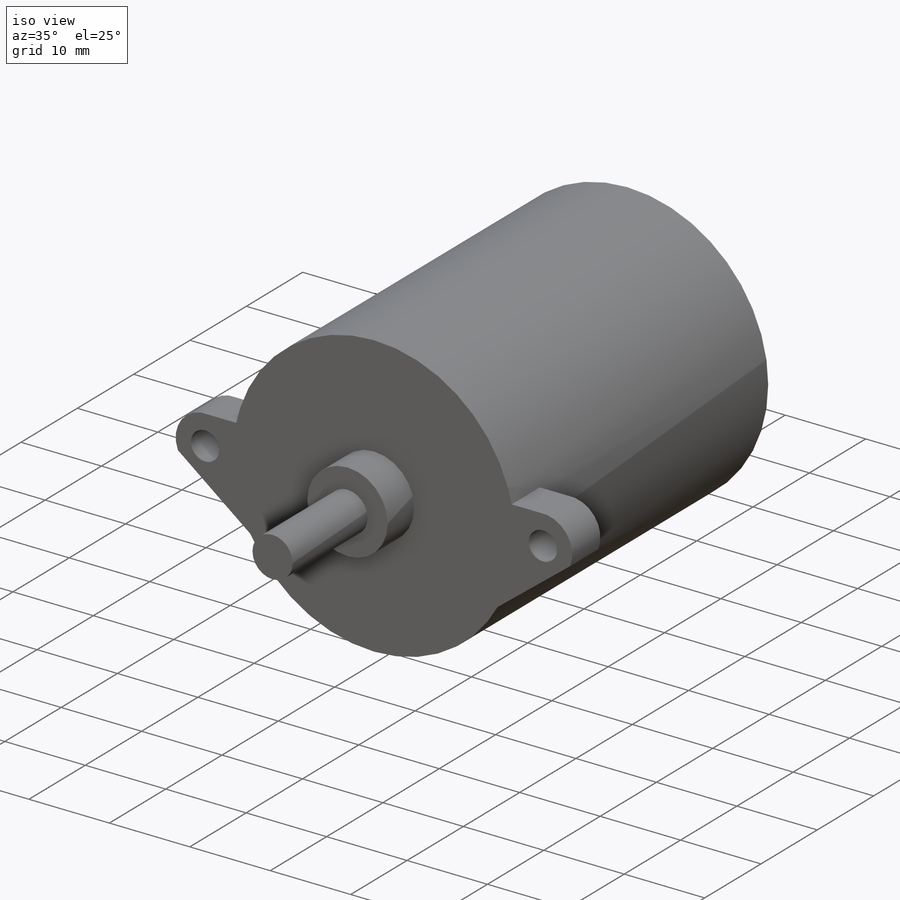
[diagram: iso view]
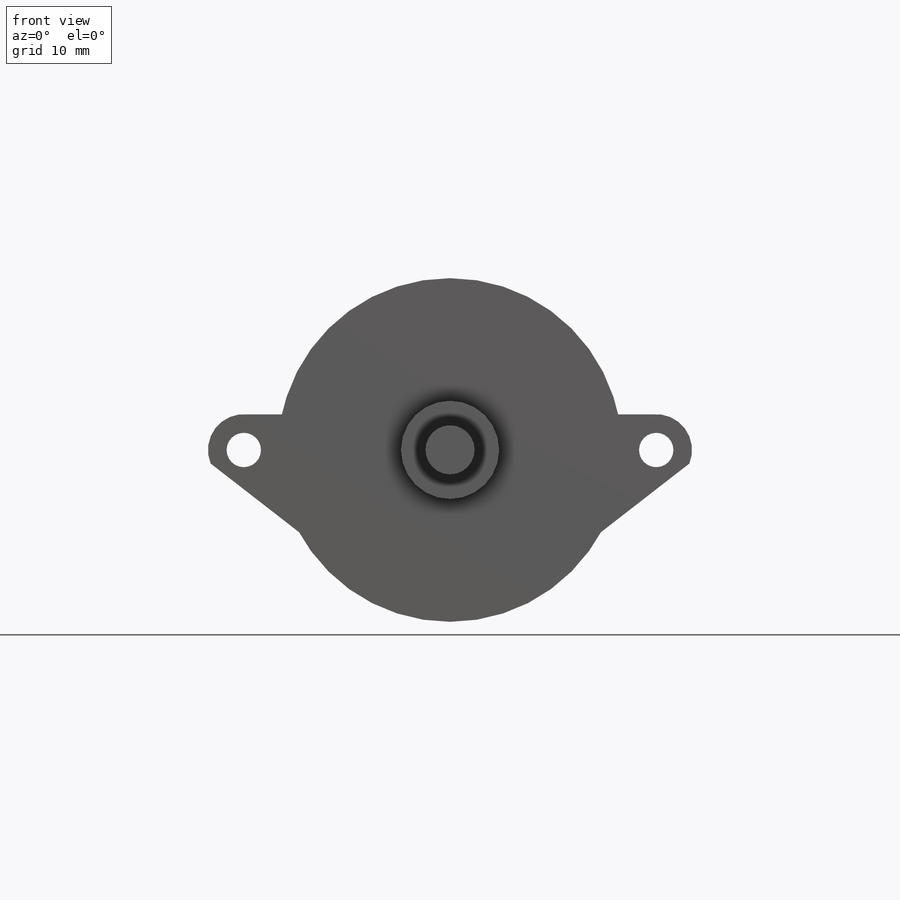
[diagram: front view]
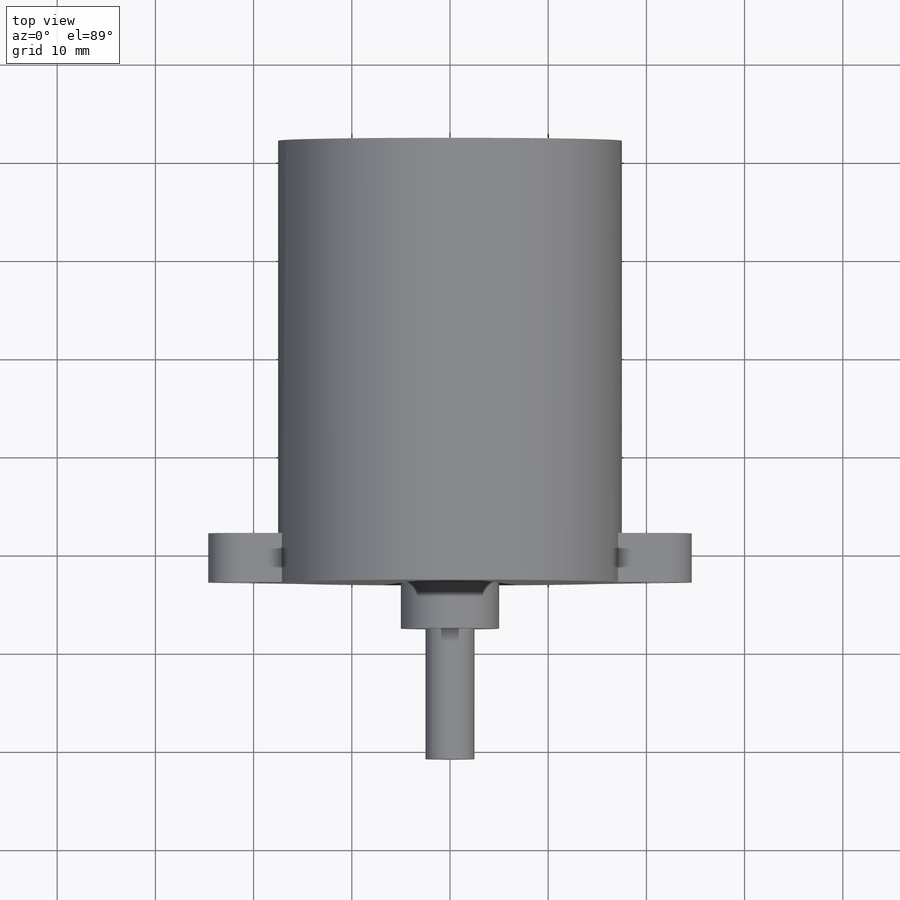
[diagram: top view]
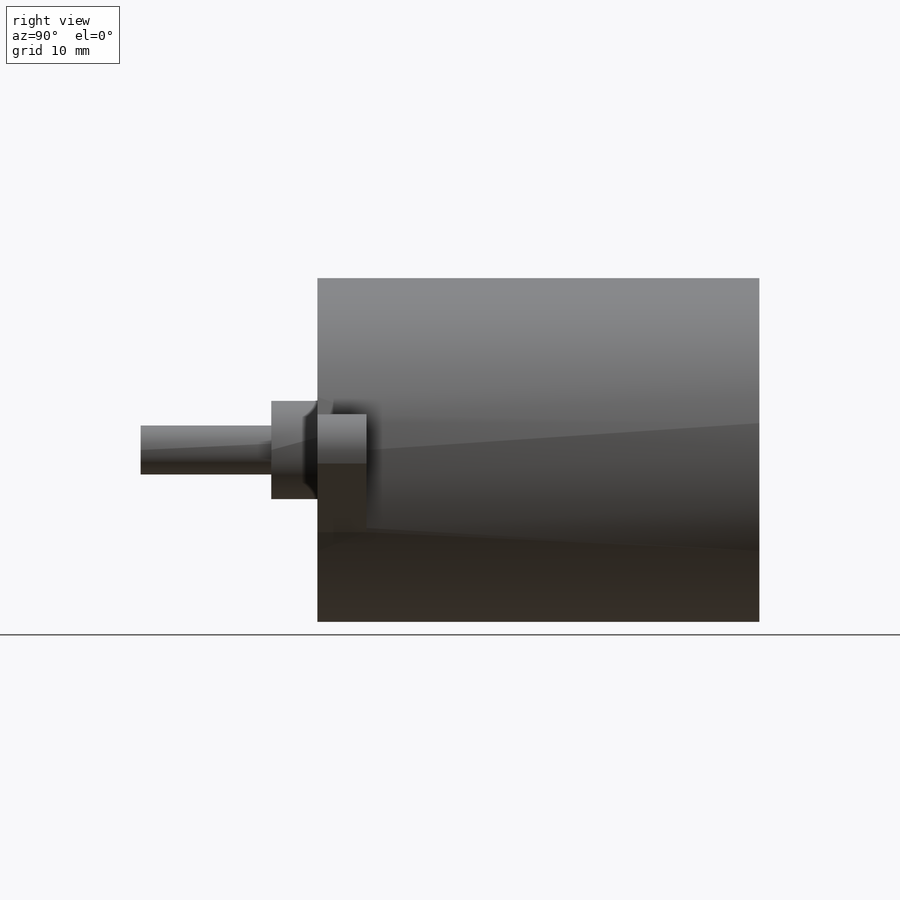
[diagram: right view]
SOLIDWORKS PART (.sldprt)
format: sldprt  version: not decoded by parser v0  size: 192,000 bytes
history: native  units: mm
features: sketch x3, plane x2, extrude x2, material x1, revolve x1 (+12 scaffold rows collapsed)
feature tree (21):
  scaffold x12  (default folders/planes/origin — collapsed)
  material  "Material <not specified>"
  plane  "Plane1"  Offset=33.02mm
  sketch  "Sketch1"  dims[D5=~66.247316mm D1=42.0mm D2=42.0mm D3=21.0mm D4=21.0mm]
  extrude  "Boss-Extrude1"  Depth=45mm
  plane  "Plane2"
  sketch  "Sketch6"  dims[c1.D1=15.24mm c1.D2=2.0066mm c1.D3=5.0mm c2.D2=4.7mm c2.D1=18.0mm c2.D4=33.02mm c2.D5=21.0mm c2.D6=2.5mm c3.D5=12.7mm c4.D5=90.0deg c5.D5=35.0mm c6.D5=270.0deg c7.D5=35.0mm]
  revolve  "Revolve5"  Angle=360deg
  sketch  "Sketch7"  dims[c1.D1=3.5mm c1.D2=3.5mm c1.D3=3.5mm c1.D4=3.65mm c1.D5=3.5mm c1.D7=3.5mm c2.D2=21.0mm c2.D3=42.0mm c2.D4=~8.837603mm c2.D5=12.0mm c2.D6=5.0mm c2.D7=~11.413667mm c3.D7=~43.857197deg c4.D7=~24.381596mm]
  extrude  "Boss-Extrude2"  Depth=5mm
decode coverage: 6 of 6 modeling features carry decoded parameters
note: ~ marks probable driven/reference dimensions
note: suppression state not decoded; provenance and decode notes live in map.json
